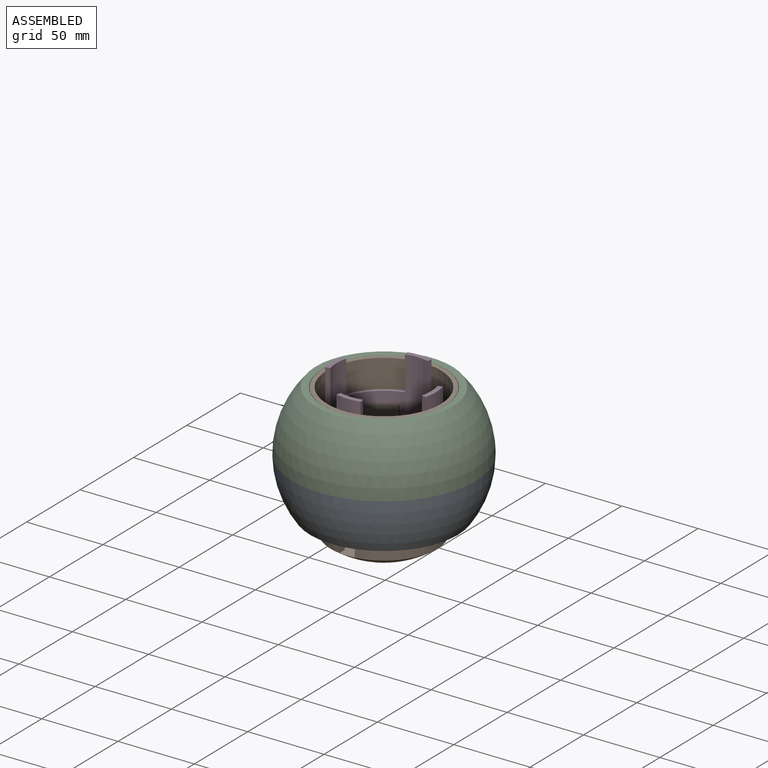
[diagram: assembled view]
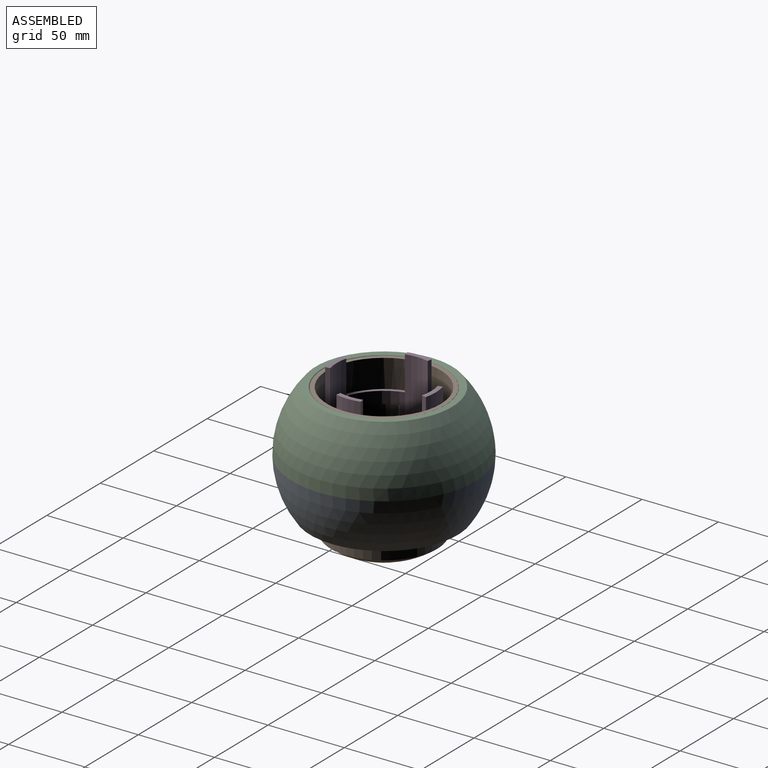
[diagram: assembled view, second angle]
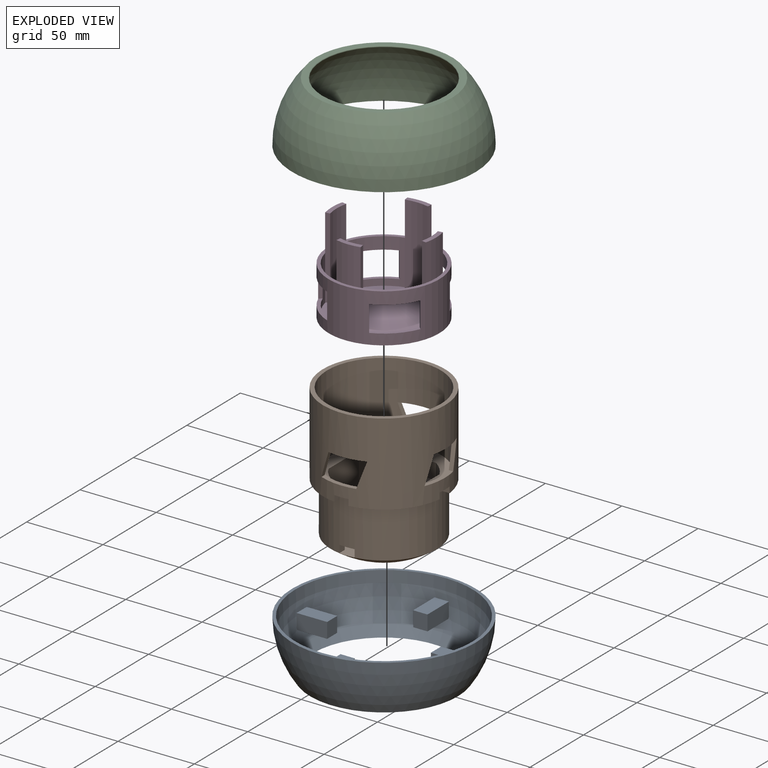
[diagram: exploded view]
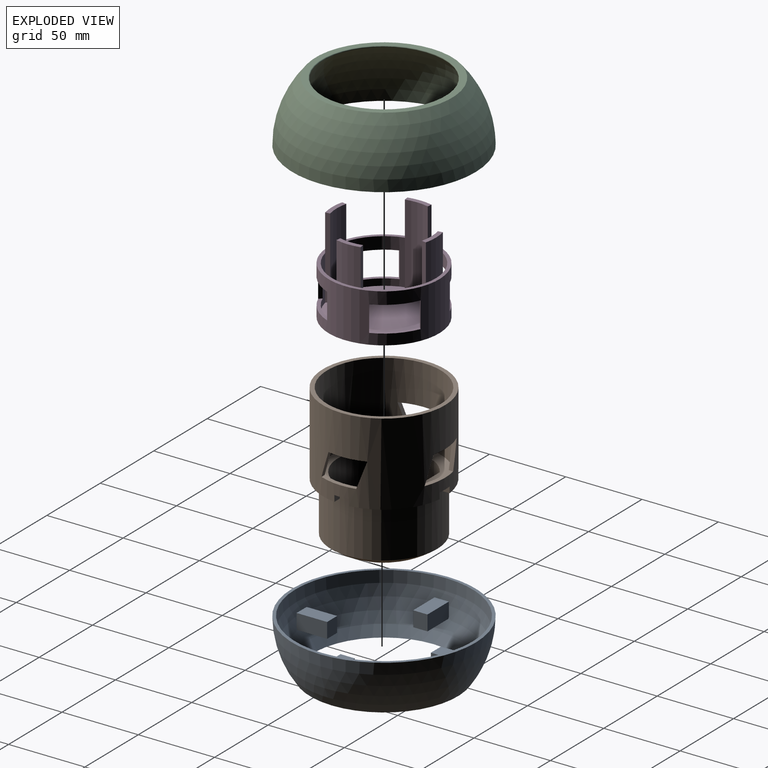
[diagram: exploded view, second angle]
ASSEMBLY  parts=4 mates=4
PART A: 28 faces, bbox 120x120x34.8 mm
  f0: sphere r=58mm, area 12571.8mm2, adj f1,f2,f4,f5,f6,f7,f10,f11
  f1: cone r=46.19mm half-angle=83.6deg, axis (0,0,-1), area 688.4mm2, adj f0,f3
  f2: cone r=58mm half-angle=88.9deg, axis (0,0,-1), area 741.4mm2, adj f0,f3
  f3: sphere r=60mm, area 13116.1mm2, adj f1,f2
  f4: plane 20x10mm, normal (1,0,0), area 199.8mm2, adj f0,f5,f7,f8,f9
  f5: plane 9.52x9.35mm, normal (0,1,0), area 87.4mm2, adj f0,f4,f6,f9
  f6: plane 20x10mm, normal (-1,0,0), area 199.8mm2, adj f0,f5,f7,f8,f9
  f7: plane 19.81x9.35mm, normal (0,0,-1), area 184.6mm2, adj f0,f4,f6,f8
  f8: plane 10x9.35mm, normal (0,-1,0), area 93.5mm2, adj f4,f6,f7,f9
  f9: plane 20x9.35mm, normal (0,0,1), area 187mm2, adj f4,f5,f6,f8
  f10: plane 20x10mm, normal (0,-1,0), area 199.8mm2, adj f0,f11,f13,f14,f15
  f11: plane 9.52x9.35mm, normal (1,0,0), area 87.4mm2, adj f0,f10,f12,f15
  f12: plane 20x10mm, normal (0,1,0), area 199.8mm2, adj f0,f11,f13,f14,f15
  f13: plane 19.81x9.35mm, normal (0,0,-1), area 184.6mm2, adj f0,f10,f12,f14
  f14: plane 10x9.35mm, normal (-1,0,0), area 93.5mm2, adj f10,f12,f13,f15
  f15: plane 20x9.35mm, normal (0,0,1), area 187mm2, adj f10,f11,f12,f14
  f16: plane 20x10mm, normal (-1,0,0), area 199.8mm2, adj f0,f17,f19,f20,f21
  f17: plane 9.52x9.35mm, normal (0,-1,0), area 87.4mm2, adj f0,f16,f18,f21
  f18: plane 20x10mm, normal (1,0,0), area 199.8mm2, adj f0,f17,f19,f20,f21
  f19: plane 19.81x9.35mm, normal (0,0,-1), area 184.6mm2, adj f0,f16,f18,f20
  f20: plane 10x9.35mm, normal (0,1,0), area 93.5mm2, adj f16,f18,f19,f21
  f21: plane 20x9.35mm, normal (0,0,1), area 187mm2, adj f16,f17,f18,f20
  f22: plane 20x10mm, normal (0,1,0), area 199.8mm2, adj f0,f23,f25,f26,f27
  f23: plane 9.52x9.35mm, normal (-1,0,0), area 87.4mm2, adj f0,f22,f24,f27
  f24: plane 20x10mm, normal (0,-1,0), area 199.8mm2, adj f0,f23,f25,f26,f27
  f25: plane 19.81x9.35mm, normal (0,0,-1), area 184.6mm2, adj f0,f22,f24,f26
  f26: plane 10x9.35mm, normal (1,0,0), area 93.5mm2, adj f22,f24,f25,f27
  f27: plane 20x9.35mm, normal (0,0,1), area 187mm2, adj f22,f23,f24,f26
PART B: 65 faces, bbox 80.2x80.2x98.3 mm
  f0: plane 73.91x73.91mm, normal (0,0,1), area 1696.1mm2, adj f1,f3,f4,f7,f26,f28,f54,f55
  f1: cylinder r=37.25mm len=74.5mm, axis (0,0,-1), area 10028.6mm2, adj f0,f32,f37,f38,f39,f40,f41,f42
  f2: cylinder r=40mm len=80mm, axis (0,0,-1), area 11753mm2, adj f32,f33,f34,f35,f36,f37,f38,f39
  f3: cylinder r=35mm len=70mm, axis (0,0,1), area 7225mm2, adj f0,f6,f29,f30,f31,f33,f34,f35
  f4: cylinder r=30mm len=60mm, axis (0,0,1), area 3403.4mm2, adj f0,f5,f7,f14,f18,f21,f25,f26
  f5: plane 60.26x60.01mm, normal (0,0,1), area 2371mm2, adj f4,f6,f14,f18,f19,f29,f30
  f6: revolved ~70x70mm, area 4267.3mm2, adj f3,f5,f8,f9,f10,f11,f12,f13
  f7: plane 33x26.4mm, normal (0,-1,0), area 747mm2, adj f0,f4,f15,f16,f17,f20,f22,f23
  f8: plane 0.15x0.08mm, normal (0,0,-1), area 0mm2, adj f6,f9,f10
  f9: plane 0.15x0.05mm, normal (0,1,0), area 0mm2, adj f6,f8,f10
  f10: plane 0.08x0.05mm, normal (1,0,0), area 0mm2, adj f6,f8,f9
  f11: plane 0.15x0.08mm, normal (0,0,-1), area 0mm2, adj f6,f12,f13
  f12: plane 0.15x0.05mm, normal (0,1,0), area 0mm2, adj f6,f11,f13
  f13: plane 0.08x0.05mm, normal (-1,0,0), area 0mm2, adj f6,f11,f12
  f14: plane 12x10mm, normal (1,0,0), area 120mm2, adj f4,f5,f15,f19
  f15: plane 27.6x12mm, normal (0,0,1), area 331.2mm2, adj f7,f14,f16,f19
  f16: plane 16x12mm, normal (1,0,0), area 192mm2, adj f7,f15,f17,f19
  f17: plane 12x5.4mm, normal (0,0,1), area 64.8mm2, adj f7,f16,f18,f19
  f18: plane 26x12mm, normal (-1,0,0), area 312mm2, adj f4,f5,f17,f19
  f19: plane 33x26mm, normal (0,-1,0), area 416.4mm2, adj f5,f14,f15,f16,f17,f18
  f20: plane 12x5.4mm, normal (0,0,-1), area 64.8mm2, adj f7,f21,f23,f24
  f21: plane 12x7mm, normal (1,0,0), area 84mm2, adj f4,f20,f22,f24
  f22: plane 12x5.4mm, normal (0,0,1), area 64.8mm2, adj f7,f21,f23,f24
  f23: plane 12x7mm, normal (-1,0,0), area 84mm2, adj f7,f20,f22,f24
  f24: plane 7x5.4mm, normal (0,-1,0), area 37.8mm2, adj f20,f21,f22,f23
  f25: plane 28.47x3.59mm, normal (0,0,-1), area 69mm2, adj f4,f26
  f26: plane 36x28.47mm, normal (1,0,0), area 1024.9mm2, adj f0,f4,f25
  f27: plane 28.47x3.59mm, normal (0,0,-1), area 69mm2, adj f4,f28
  f28: plane 36x28.47mm, normal (-1,0,0), area 1024.9mm2, adj f0,f4,f27
  f29: plane 5.06x5mm, normal (1,0,0), area 25.3mm2, adj f3,f4,f5,f31
  f30: plane 5.06x5mm, normal (-1,0,0), area 25.3mm2, adj f3,f4,f5,f31
  f31: plane 10x5.42mm, normal (0,0,-1), area 50.2mm2, adj f3,f4,f29,f30
  f32: plane 80x80mm, normal (0,0,1), area 667.4mm2, adj f1,f2
  f33: plane 35.05x35.05mm, normal (0,0,-1), area 247.7mm2, adj f2,f3,f60,f63
  f34: plane 35.05x35.05mm, normal (0,0,-1), area 247.7mm2, adj f2,f3,f57,f61
  f35: plane 35.05x35.05mm, normal (0,0,-1), area 247.7mm2, adj f2,f3,f54,f58
  f36: plane 35.05x35.05mm, normal (0,0,-1), area 247.7mm2, adj f2,f3,f55,f64
  f37: plane 17.25x6.16mm, normal (0.94,0,-0.33), area 52.2mm2, adj f1,f2,f38,f40
  f38: plane 24.08x5.9mm, normal (0,0,1), area 67.6mm2, adj f1,f2,f37,f39
  f39: plane 17.25x6.16mm, normal (-0.94,0,0.33), area 52.2mm2, adj f1,f2,f38,f40
  f40: plane 24.08x5.9mm, normal (0,0,-1), area 67.6mm2, adj f1,f2,f37,f39
  f41: plane 24.08x5.9mm, normal (0,0,1), area 67.6mm2, adj f1,f2,f42,f44
  f42: plane 17.25x6.16mm, normal (-0.94,0,-0.33), area 52.2mm2, adj f1,f2,f41,f43
  f43: plane 24.08x5.9mm, normal (0,0,-1), area 67.6mm2, adj f1,f2,f42,f44
  f44: plane 17.25x6.16mm, normal (0.94,0,0.33), area 52.2mm2, adj f1,f2,f41,f43
  f45: plane 17.25x6.16mm, normal (0,0.94,-0.33), area 52.2mm2, adj f1,f2,f46,f48
  f46: plane 24.08x5.9mm, normal (0,0,1), area 67.6mm2, adj f1,f2,f45,f47
  f47: plane 17.25x6.16mm, normal (0,-0.94,0.33), area 52.2mm2, adj f1,f2,f46,f48
  f48: plane 24.08x5.9mm, normal (0,0,-1), area 67.6mm2, adj f1,f2,f45,f47
  f49: plane 24.08x5.9mm, normal (0,0,1), area 67.6mm2, adj f1,f2,f50,f52
  f50: plane 17.25x6.16mm, normal (0,-0.94,-0.33), area 52.2mm2, adj f1,f2,f49,f51
  f51: plane 24.08x5.9mm, normal (0,0,-1), area 67.6mm2, adj f1,f2,f50,f52
  f52: plane 17.25x6.16mm, normal (0,0.94,0.33), area 52.2mm2, adj f1,f2,f49,f51
  f53: plane 9.35x3.04mm, normal (0,0,-1), area 25.8mm2, adj f1,f2,f54,f55
  f54: plane 5.04x4mm, normal (0,1,0), area 20.2mm2, adj f0,f2,f3,f35,f53
  f55: plane 5.04x4mm, normal (0,-1,0), area 20.2mm2, adj f0,f2,f3,f36,f53
  f56: plane 9.35x3.04mm, normal (0,0,-1), area 25.8mm2, adj f1,f2,f57,f58
  f57: plane 5.04x4mm, normal (-1,0,0), area 20.2mm2, adj f0,f2,f3,f34,f56
  f58: plane 5.04x4mm, normal (1,0,0), area 20.2mm2, adj f0,f2,f3,f35,f56
  f59: plane 9.35x3.04mm, normal (0,0,-1), area 25.8mm2, adj f1,f2,f60,f61
  f60: plane 5.04x4mm, normal (0,-1,0), area 20.2mm2, adj f0,f2,f3,f33,f59
  f61: plane 5.04x4mm, normal (0,1,0), area 20.2mm2, adj f0,f2,f3,f34,f59
  f62: plane 9.35x3.04mm, normal (0,0,-1), area 25.8mm2, adj f1,f2,f63,f64
  f63: plane 5.04x4mm, normal (-1,0,0), area 20.2mm2, adj f0,f2,f3,f33,f62
  f64: plane 5.04x4mm, normal (1,0,0), area 20.2mm2, adj f0,f2,f3,f36,f62
PART C: 29 faces, bbox 120x120x40 mm
  f0: sphere r=56.2mm, area 13817.9mm2, adj f3,f4,f5,f6,f13,f14,f15,f19
  f1: plane 89.44x89.44mm, normal (0,0,1), area 1085mm2, adj f2,f28
  f2: sphere r=60mm, area 15079.6mm2, adj f1,f3
  f3: plane 120x120mm, normal (0,0,-1), area 1387.2mm2, adj f0,f2
  f4: plane 5x4mm, normal (0,1,0), area 18.2mm2, adj f0,f5,f6,f8,f9
  f5: plane 5x4mm, normal (0,0,1), area 19.8mm2, adj f0,f4,f6,f7,f9
  f6: plane 4x4mm, normal (1,0,0), area 15.9mm2, adj f0,f4,f5,f7,f8
  f7: plane 5x4mm, normal (0,-1,0), area 20mm2, adj f5,f6,f8,f9
  f8: plane 5x4mm, normal (0,0,-1), area 20mm2, adj f4,f6,f7,f9
  f9: plane 4x4mm, normal (-1,0,0), area 16mm2, adj f4,f5,f7,f8
  f10: plane 4x4mm, normal (1,0,0), area 16mm2, adj f11,f12,f14,f15
  f11: plane 5x4mm, normal (0,0,-1), area 20mm2, adj f10,f12,f13,f15
  f12: plane 5x4mm, normal (0,1,0), area 20mm2, adj f10,f11,f13,f14
  f13: plane 4x4mm, normal (-1,0,0), area 15.9mm2, adj f0,f11,f12,f14,f15
  f14: plane 5x4mm, normal (0,0,1), area 19.8mm2, adj f0,f10,f12,f13,f15
  f15: plane 5x4mm, normal (0,-1,0), area 18.2mm2, adj f0,f10,f11,f13,f14
  f16: plane 5x4mm, normal (-1,0,0), area 20mm2, adj f17,f18,f20,f21
  f17: plane 4x4mm, normal (0,1,0), area 16mm2, adj f16,f18,f19,f20
  f18: plane 5x4mm, normal (0,0,-1), area 20mm2, adj f16,f17,f19,f21
  f19: plane 5x4mm, normal (1,0,0), area 18.2mm2, adj f0,f17,f18,f20,f21
  f20: plane 5x4mm, normal (0,0,1), area 19.8mm2, adj f0,f16,f17,f19,f21
  f21: plane 4x4mm, normal (0,-1,0), area 15.9mm2, adj f0,f16,f18,f19,f20
  f22: plane 5x4mm, normal (-1,0,0), area 18.2mm2, adj f0,f23,f24,f26,f27
  f23: plane 5x4mm, normal (0,0,1), area 19.8mm2, adj f0,f22,f24,f25,f27
  f24: plane 4x4mm, normal (0,1,0), area 15.9mm2, adj f0,f22,f23,f25,f26
  f25: plane 5x4mm, normal (1,0,0), area 20mm2, adj f23,f24,f26,f27
  f26: plane 5x4mm, normal (0,0,-1), area 20mm2, adj f22,f24,f25,f27
  f27: plane 4x4mm, normal (0,-1,0), area 16mm2, adj f22,f23,f25,f26
  f28: torus R=40.68mm, axis (0,0,1), area 296.6mm2, adj f0,f1
PART D: 46 faces, bbox 72.5x72.5x56 mm
  f0: cylinder r=34mm len=29.39mm, axis (0,0,-1), area 608.3mm2, adj f3,f7,f22,f23,f24,f25,f28,f44
  f1: cylinder r=34mm len=29.39mm, axis (0,0,-1), area 608.3mm2, adj f3,f7,f10,f11,f12,f13,f39,f42
  f2: cylinder r=34mm len=29.39mm, axis (0,0,-1), area 608.3mm2, adj f3,f7,f14,f15,f16,f17,f34,f37
  f3: cone r=0mm half-angle=73deg, axis (0,0,-1), area 3602.7mm2, adj f0,f1,f2,f4,f26,f27,f28,f31
  f4: cylinder r=34mm len=29.39mm, axis (0,0,-1), area 608.3mm2, adj f3,f7,f18,f19,f20,f21,f26,f32
  f5: cylinder r=36.25mm len=72.5mm, axis (0,0,-1), area 5333.7mm2, adj f7,f8,f10,f11,f12,f13,f14,f15
  f6: cylinder r=34mm len=68mm, axis (0,0,-1), area 427.3mm2, adj f8,f9
  f7: plane 72.5x72.5mm, normal (0,0,1), area 496.6mm2, adj f0,f1,f2,f4,f5,f29,f33,f38
  f8: plane 72.5x72.5mm, normal (0,0,-1), area 496.6mm2, adj f5,f6
  f9: plane 68x68mm, normal (0,0,-1), area 3631.7mm2, adj f6
  f10: plane 17x1.74mm, normal (-0.71,-0.71,0), area 41.7mm2, adj f1,f5,f11,f13
  f11: plane 21.53x21.53mm, normal (0,0,-1), area 64.8mm2, adj f1,f5,f10,f12
  f12: plane 17x1.74mm, normal (0.71,0.71,0), area 41.7mm2, adj f1,f5,f11,f13
  f13: plane 21.53x21.53mm, normal (0,0,1), area 64.8mm2, adj f1,f5,f10,f12
  f14: plane 17x1.74mm, normal (0.71,-0.71,0), area 41.7mm2, adj f2,f5,f15,f17
  f15: plane 21.53x21.53mm, normal (0,0,-1), area 64.8mm2, adj f2,f5,f14,f16
  f16: plane 17x1.74mm, normal (-0.71,0.71,0), area 41.7mm2, adj f2,f5,f15,f17
  f17: plane 21.53x21.53mm, normal (0,0,1), area 64.8mm2, adj f2,f5,f14,f16
  f18: plane 21.53x21.53mm, normal (0,0,-1), area 64.8mm2, adj f4,f5,f19,f21
  f19: plane 17x1.74mm, normal (0.71,0.71,0), area 41.7mm2, adj f4,f5,f18,f20
  f20: plane 21.53x21.53mm, normal (0,0,1), area 64.8mm2, adj f4,f5,f19,f21
  f21: plane 17x1.74mm, normal (-0.71,-0.71,0), area 41.7mm2, adj f4,f5,f18,f20
  f22: plane 21.53x21.53mm, normal (0,0,-1), area 64.8mm2, adj f0,f5,f23,f25
  f23: plane 17x1.74mm, normal (-0.71,0.71,0), area 41.7mm2, adj f0,f5,f22,f24
  f24: plane 21.53x21.53mm, normal (0,0,1), area 64.8mm2, adj f0,f5,f23,f25
  f25: plane 17x1.74mm, normal (0.71,-0.71,0), area 41.7mm2, adj f0,f5,f22,f24
  f26: plane 53.4x2.98mm, normal (0.15,0.99,0), area 158.8mm2, adj f3,f4,f27,f29,f30
  f27: cylinder r=31.01mm len=52.48mm, axis (0,0,-1), area 795mm2, adj f3,f26,f28,f30
  f28: plane 53.4x2.98mm, normal (0.14,-0.99,0), area 158.8mm2, adj f0,f3,f27,f29,f30
  f29: cylinder r=34mm len=24mm, axis (0,0,-1), area 384.4mm2, adj f7,f26,f28,f30
  f30: plane 15.87x3.93mm, normal (0,0,1), area 46.5mm2, adj f26,f27,f28,f29
  f31: cylinder r=31.01mm len=52.48mm, axis (0,0,-1), area 795mm2, adj f3,f32,f34,f35
  f32: plane 53.4x2.98mm, normal (-0.99,-0.14,0), area 158.8mm2, adj f3,f4,f31,f33,f35
  f33: cylinder r=34mm len=24mm, axis (0,0,-1), area 384.4mm2, adj f7,f32,f34,f35
  f34: plane 53.4x2.98mm, normal (0.99,-0.15,0), area 158.8mm2, adj f2,f3,f31,f33,f35
  f35: plane 15.87x3.93mm, normal (0,0,1), area 46.5mm2, adj f31,f32,f33,f34
  f36: cylinder r=31.01mm len=52.48mm, axis (0,0,-1), area 795mm2, adj f3,f37,f39,f40
  f37: plane 53.4x2.98mm, normal (-0.14,0.99,0), area 158.8mm2, adj f2,f3,f36,f38,f40
  f38: cylinder r=34mm len=24mm, axis (0,0,-1), area 384.4mm2, adj f7,f37,f39,f40
  f39: plane 53.4x2.98mm, normal (-0.15,-0.99,0), area 158.8mm2, adj f1,f3,f36,f38,f40
  f40: plane 15.87x3.93mm, normal (0,0,1), area 46.5mm2, adj f36,f37,f38,f39
  f41: cylinder r=31.01mm len=52.48mm, axis (0,0,-1), area 795mm2, adj f3,f42,f44,f45
  f42: plane 53.4x2.98mm, normal (0.99,0.14,0), area 158.8mm2, adj f1,f3,f41,f43,f45
  f43: cylinder r=34mm len=24mm, axis (0,0,-1), area 384.4mm2, adj f7,f42,f44,f45
  f44: plane 53.4x2.98mm, normal (-0.99,0.15,0), area 158.8mm2, adj f0,f3,f41,f43,f45
  f45: plane 15.87x3.93mm, normal (0,0,1), area 46.5mm2, adj f41,f42,f43,f44
PLACE A t=(-66.4,79.53,30.05)mm
PLACE B t=(-66.4,79.53,30.86)mm
PLACE C t=(-66.4,79.53,41.15)mm
PLACE D t=(-66.4,79.53,32.86)mm
MATE cylindrical C.f28 <-> A.f1  axis (0,0,-1) through (-66.4,79.53,41.15)mm
MATE cylindrical B.f3 <-> A.f1  axis (0,0,1) through (-66.4,79.53,12.66)mm
MATE parallel A.f21 <-> B.f56  axis (0,0,1) through (-66.4,45.53,30.05)mm
MATE revolute D.f5 <-> B.f1  axis (0,0,-1) through (-66.4,79.53,30.86)mm
